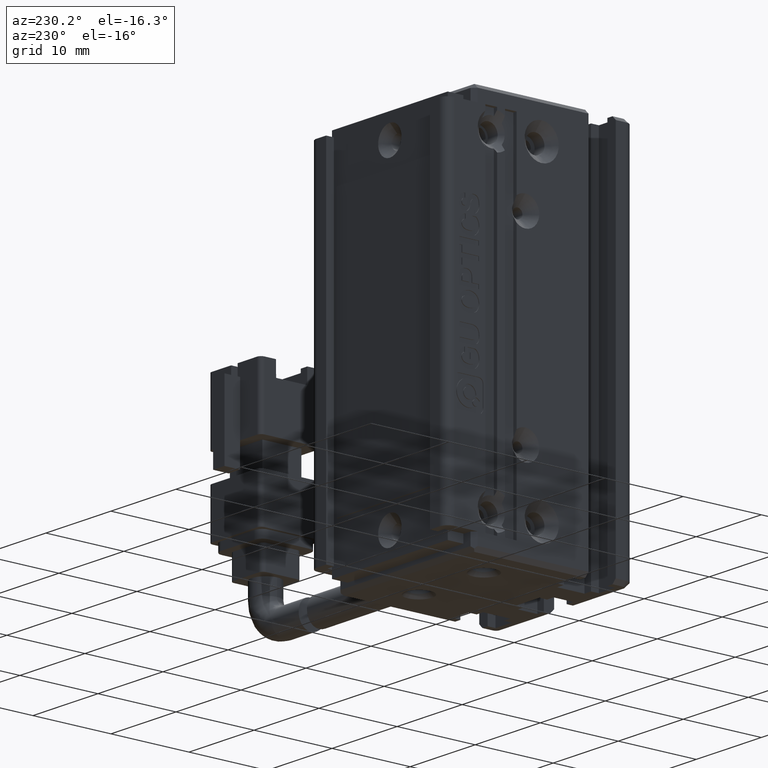
[diagram: clean part render]
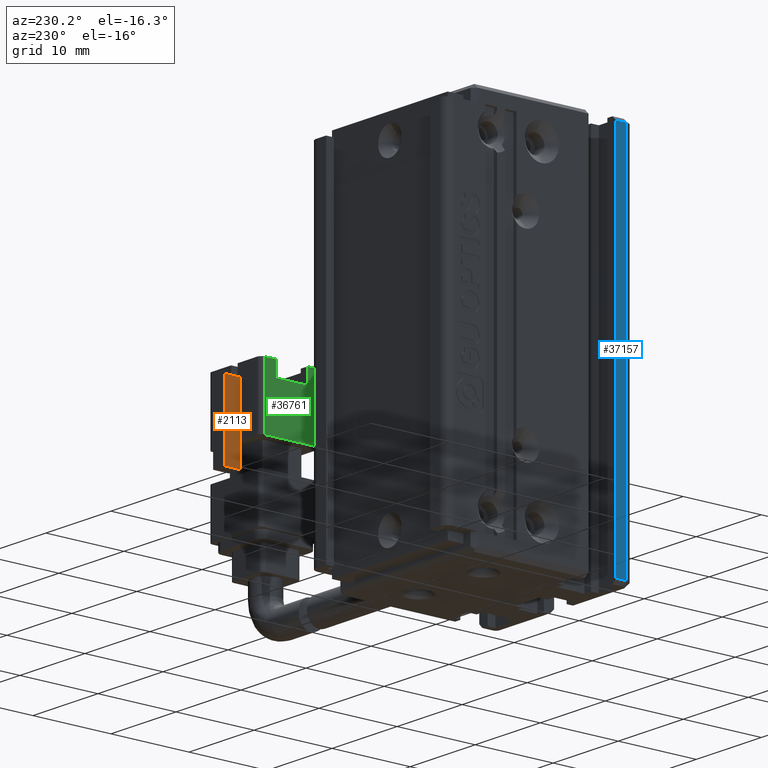
[diagram: same view with three faces highlighted in distinct colors, each labeled with its STEP entity id]
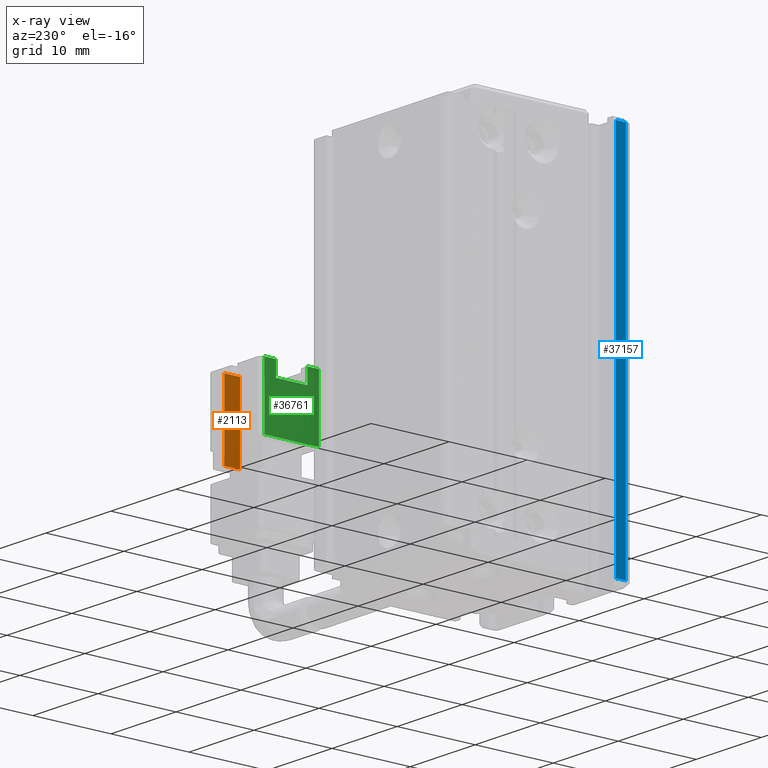
[diagram: x-ray of the same camera — body ghosted, the three highlighted faces saturated]
A machine part, auxiliary view with three faces highlighted in distinct colors.
The next image is the same camera in x-ray (body ghosted, the three faces saturated) — at least one of them is partly hidden behind the body in this view.
Their STEP definitions:

[orange] entity #2113 — the highlighted planar face has unit normal (-1, -0, -0).
#388 = EDGE_CURVE ( 'NONE', #18040, #18680, #3907, .T. ) ;
#471 = VERTEX_POINT ( 'NONE', #21193 ) ;
#2113 = ADVANCED_FACE ( 'NONE', ( #15467 ), #27715, .T. ) ;
#2116 = CARTESIAN_POINT ( 'NONE',  ( 73.55037974683534700, 25.49073232304858600, -119.9500000000000000 ) ) ;
#2722 = VECTOR ( 'NONE', #30249, 1000.000000000000000 ) ;
#2993 = DIRECTION ( 'NONE',  ( -1.041348031262155300E-030, 5.551115123125780200E-017, 1.000000000000000000 ) ) ;
#3907 = LINE ( 'NONE', #32717, #12393 ) ;
#4446 = EDGE_CURVE ( 'NONE', #24692, #34604, #23808, .T. ) ;
#5408 = ORIENTED_EDGE ( 'NONE', *, *, #4446, .T. ) ;
#5999 = ORIENTED_EDGE ( 'NONE', *, *, #8222, .T. ) ;
#6683 = DIRECTION ( 'NONE',  ( 1.041348031262155300E-030, -5.551115123125780200E-017, -1.000000000000000000 ) ) ;
#7549 = VECTOR ( 'NONE', #10087, 1000.000000000000000 ) ;
#8222 = EDGE_CURVE ( 'NONE', #34604, #471, #21112, .T. ) ;
#8970 = VECTOR ( 'NONE', #12421, 1000.000000000000000 ) ;
#9204 = CARTESIAN_POINT ( 'NONE',  ( 73.55037974683534700, 25.49073232304858600, -110.4500000000000000 ) ) ;
#9380 = LINE ( 'NONE', #30307, #8970 ) ;
#10087 = DIRECTION ( 'NONE',  ( 3.304235192336770000E-015, -1.000000000000000000, 5.551115123125780200E-017 ) ) ;
#12393 = VECTOR ( 'NONE', #2993, 1000.000000000000000 ) ;
#12421 = DIRECTION ( 'NONE',  ( -1.041348031262155300E-030, 5.551115123125780200E-017, 1.000000000000000000 ) ) ;
#14452 = ORIENTED_EDGE ( 'NONE', *, *, #24830, .T. ) ;
#14531 = CARTESIAN_POINT ( 'NONE',  ( 73.55037974683534700, 25.49073232304858600, -116.9500000000000000 ) ) ;
#15453 = EDGE_CURVE ( 'NONE', #471, #18040, #26330, .T. ) ;
#15467 = FACE_OUTER_BOUND ( 'NONE', #26767, .T. ) ;
#17775 = CARTESIAN_POINT ( 'NONE',  ( 73.55037974683534700, 25.49073232304858600, -110.4500000000000000 ) ) ;
#18040 = VERTEX_POINT ( 'NONE', #2116 ) ;
#18680 = VERTEX_POINT ( 'NONE', #14531 ) ;
#18747 = ORIENTED_EDGE ( 'NONE', *, *, #388, .T. ) ;
#19733 = VECTOR ( 'NONE', #6683, 1000.000000000000000 ) ;
#21112 = LINE ( 'NONE', #35644, #19733 ) ;
#21193 = CARTESIAN_POINT ( 'NONE',  ( 73.55037974683534700, 27.49073232304858600, -119.9500000000000000 ) ) ;
#21712 = DIRECTION ( 'NONE',  ( -1.041348031262155300E-030, 5.551115123125780200E-017, 1.000000000000000000 ) ) ;
#22914 = AXIS2_PLACEMENT_3D ( 'NONE', #36592, #30494, #21712 ) ;
#23808 = LINE ( 'NONE', #9204, #2722 ) ;
#24692 = VERTEX_POINT ( 'NONE', #17775 ) ;
#24830 = EDGE_CURVE ( 'NONE', #18680, #24692, #9380, .T. ) ;
#26330 = LINE ( 'NONE', #31381, #7549 ) ;
#26767 = EDGE_LOOP ( 'NONE', ( #5999, #32709, #18747, #14452, #5408 ) ) ;
#27715 = PLANE ( 'NONE',  #22914 ) ;
#30249 = DIRECTION ( 'NONE',  ( -3.304235192336770000E-015, 1.000000000000000000, -5.551115123125780200E-017 ) ) ;
#30307 = CARTESIAN_POINT ( 'NONE',  ( 73.55037974683534700, 25.49073232304858600, -108.9500000000000000 ) ) ;
#30494 = DIRECTION ( 'NONE',  ( -1.000000000000000000, -3.304235192336770000E-015, -8.579261317967046800E-031 ) ) ;
#30693 = CARTESIAN_POINT ( 'NONE',  ( 73.55037974683534700, 27.49073232304858600, -110.4500000000000000 ) ) ;
#31381 = CARTESIAN_POINT ( 'NONE',  ( 73.55037974683534700, 25.49073232304858600, -119.9500000000000000 ) ) ;
#32709 = ORIENTED_EDGE ( 'NONE', *, *, #15453, .T. ) ;
#32717 = CARTESIAN_POINT ( 'NONE',  ( 73.55037974683534700, 25.49073232304858600, -119.9500000000000000 ) ) ;
#34604 = VERTEX_POINT ( 'NONE', #30693 ) ;
#35644 = CARTESIAN_POINT ( 'NONE',  ( 73.55037974683534700, 27.49073232304858600, -110.4500000000000000 ) ) ;
#36592 = CARTESIAN_POINT ( 'NONE',  ( 73.55037974683534700, 25.49073232304858600, -110.4500000000000000 ) ) ;

[blue] entity #37157 — the highlighted planar face has unit normal (-1, -0, 0).
#437 = VERTEX_POINT ( 'NONE', #2490 ) ;
#2490 = CARTESIAN_POINT ( 'NONE',  ( 30.42537974683542100, 13.29073232304837200, -91.50000000000000000 ) ) ;
#4539 = DIRECTION ( 'NONE',  ( -0.0000000000000000000, -0.0000000000000000000, -1.000000000000000000 ) ) ;
#5176 = CARTESIAN_POINT ( 'NONE',  ( 30.42537974683542500, 11.99073232304837000, -91.50000000000000000 ) ) ;
#5178 = VERTEX_POINT ( 'NONE', #5176 ) ;
#8793 = CARTESIAN_POINT ( 'NONE',  ( 30.42537974683543200, 7.083797468354424300, -138.5000000000000000 ) ) ;
#9013 = LINE ( 'NONE', #30889, #13234 ) ;
#9956 = DIRECTION ( 'NONE',  ( 1.334402673828310500E-015, -1.000000000000000000, 0.0000000000000000000 ) ) ;
#10400 = EDGE_LOOP ( 'NONE', ( #32137, #36836, #22228, #31667 ) ) ;
#10907 = FACE_OUTER_BOUND ( 'NONE', #10400, .T. ) ;
#13234 = VECTOR ( 'NONE', #37266, 1000.000000000000000 ) ;
#15203 = DIRECTION ( 'NONE',  ( 1.334402673828310500E-015, -1.000000000000000000, 0.0000000000000000000 ) ) ;
#15297 = CARTESIAN_POINT ( 'NONE',  ( 30.42537974683543200, 7.083797468354424300, -91.00000000000000000 ) ) ;
#17604 = AXIS2_PLACEMENT_3D ( 'NONE', #15297, #21289, #9956 ) ;
#18179 = VERTEX_POINT ( 'NONE', #26592 ) ;
#18478 = EDGE_CURVE ( 'NONE', #437, #37756, #9013, .T. ) ;
#20162 = LINE ( 'NONE', #38256, #24853 ) ;
#21289 = DIRECTION ( 'NONE',  ( -1.000000000000000000, -1.334402673828310500E-015, 0.0000000000000000000 ) ) ;
#22228 = ORIENTED_EDGE ( 'NONE', *, *, #32615, .F. ) ;
#22245 = CARTESIAN_POINT ( 'NONE',  ( 30.42537974683542500, 11.99073232304837000, -91.00000000000000000 ) ) ;
#24853 = VECTOR ( 'NONE', #29641, 1000.000000000000000 ) ;
#26592 = CARTESIAN_POINT ( 'NONE',  ( 30.42537974684202200, 11.99073232304837000, -138.5000000000031800 ) ) ;
#27816 = PLANE ( 'NONE',  #17604 ) ;
#29641 = DIRECTION ( 'NONE',  ( -1.334402673828310500E-015, 1.000000000000000000, -0.0000000000000000000 ) ) ;
#30779 = EDGE_CURVE ( 'NONE', #5178, #437, #20162, .T. ) ;
#30889 = CARTESIAN_POINT ( 'NONE',  ( 30.42537974683542100, 13.29073232304837200, -91.00000000000000000 ) ) ;
#31002 = CARTESIAN_POINT ( 'NONE',  ( 30.42537974683542100, 13.29073232304837200, -138.5000000000000000 ) ) ;
#31667 = ORIENTED_EDGE ( 'NONE', *, *, #30779, .T. ) ;
#32056 = VECTOR ( 'NONE', #4539, 1000.000000000000000 ) ;
#32137 = ORIENTED_EDGE ( 'NONE', *, *, #18478, .T. ) ;
#32615 = EDGE_CURVE ( 'NONE', #5178, #18179, #32981, .T. ) ;
#32981 = LINE ( 'NONE', #22245, #32056 ) ;
#33932 = EDGE_CURVE ( 'NONE', #37756, #18179, #37397, .T. ) ;
#36836 = ORIENTED_EDGE ( 'NONE', *, *, #33932, .T. ) ;
#37157 = ADVANCED_FACE ( 'NONE', ( #10907 ), #27816, .T. ) ;
#37266 = DIRECTION ( 'NONE',  ( 0.0000000000000000000, -0.0000000000000000000, -1.000000000000000000 ) ) ;
#37397 = LINE ( 'NONE', #8793, #38348 ) ;
#37756 = VERTEX_POINT ( 'NONE', #31002 ) ;
#38256 = CARTESIAN_POINT ( 'NONE',  ( 30.42537974683543200, 7.083797468354424300, -91.50000000000000000 ) ) ;
#38348 = VECTOR ( 'NONE', #15203, 1000.000000000000000 ) ;

[green] entity #36761 — the highlighted planar face has unit normal (1, 0, 0).
#155 = ORIENTED_EDGE ( 'NONE', *, *, #19012, .F. ) ;
#350 = DIRECTION ( 'NONE',  ( 3.552052831762028200E-015, -1.000000000000000000, 5.551115123125780200E-017 ) ) ;
#1373 = DIRECTION ( 'NONE',  ( -3.304235192336770000E-015, 1.000000000000000000, -5.551115123125780200E-017 ) ) ;
#1525 = AXIS2_PLACEMENT_3D ( 'NONE', #4953, #4561, #7819 ) ;
#2432 = EDGE_CURVE ( 'NONE', #12574, #7785, #33639, .T. ) ;
#2562 = ORIENTED_EDGE ( 'NONE', *, *, #23219, .F. ) ;
#3017 = EDGE_CURVE ( 'NONE', #4309, #6104, #6709, .T. ) ;
#3417 = FACE_OUTER_BOUND ( 'NONE', #30735, .T. ) ;
#3854 = CARTESIAN_POINT ( 'NONE',  ( 70.42537974683536100, 17.99073232304857200, -108.9500000000000000 ) ) ;
#4044 = ORIENTED_EDGE ( 'NONE', *, *, #32954, .F. ) ;
#4252 = DIRECTION ( 'NONE',  ( -1.041348031262155300E-030, 5.551115123125780200E-017, 1.000000000000000000 ) ) ;
#4309 = VERTEX_POINT ( 'NONE', #32617 ) ;
#4561 = DIRECTION ( 'NONE',  ( 1.000000000000000000, 3.552052831762028200E-015, 8.441694893367958300E-031 ) ) ;
#4953 = CARTESIAN_POINT ( 'NONE',  ( 70.42537974683534700, 24.99073232304857200, -108.9500000000000000 ) ) ;
#5203 = VECTOR ( 'NONE', #1373, 1000.000000000000000 ) ;
#5780 = LINE ( 'NONE', #21176, #31573 ) ;
#6104 = VERTEX_POINT ( 'NONE', #18586 ) ;
#6709 = LINE ( 'NONE', #28786, #26876 ) ;
#6982 = CARTESIAN_POINT ( 'NONE',  ( 70.42537974683534700, 24.99073232304857200, -108.9500000000000000 ) ) ;
#7116 = LINE ( 'NONE', #6982, #10977 ) ;
#7785 = VERTEX_POINT ( 'NONE', #19076 ) ;
#7819 = DIRECTION ( 'NONE',  ( 3.552052831762028200E-015, -1.000000000000000000, 5.551115123125780200E-017 ) ) ;
#7900 = VERTEX_POINT ( 'NONE', #22217 ) ;
#10368 = LINE ( 'NONE', #3854, #30923 ) ;
#10661 = DIRECTION ( 'NONE',  ( 3.552052831762028200E-015, -1.000000000000000000, 5.551115123125780200E-017 ) ) ;
#10977 = VECTOR ( 'NONE', #4252, 1000.000000000000000 ) ;
#12574 = VERTEX_POINT ( 'NONE', #25055 ) ;
#12795 = VERTEX_POINT ( 'NONE', #23477 ) ;
#13626 = CARTESIAN_POINT ( 'NONE',  ( 70.42537974683534700, 24.99073232304857200, -116.9500000000000000 ) ) ;
#13911 = VECTOR ( 'NONE', #10661, 1000.000000000000000 ) ;
#14124 = LINE ( 'NONE', #19343, #5203 ) ;
#15990 = PLANE ( 'NONE',  #1525 ) ;
#16284 = CARTESIAN_POINT ( 'NONE',  ( 70.42537974683534700, 24.99073232304857200, -116.9500000000000000 ) ) ;
#16989 = LINE ( 'NONE', #16284, #21666 ) ;
#17333 = ORIENTED_EDGE ( 'NONE', *, *, #29914, .F. ) ;
#17354 = ORIENTED_EDGE ( 'NONE', *, *, #24199, .F. ) ;
#17751 = VECTOR ( 'NONE', #28180, 1000.000000000000000 ) ;
#18241 = ORIENTED_EDGE ( 'NONE', *, *, #30632, .T. ) ;
#18542 = DIRECTION ( 'NONE',  ( 1.041348031262155300E-030, -5.551115123125780200E-017, -1.000000000000000000 ) ) ;
#18586 = CARTESIAN_POINT ( 'NONE',  ( 70.42537974683536100, 19.49073232304857600, -108.9500000000000000 ) ) ;
#18679 = VERTEX_POINT ( 'NONE', #13626 ) ;
#19012 = EDGE_CURVE ( 'NONE', #7900, #23951, #10368, .T. ) ;
#19076 = CARTESIAN_POINT ( 'NONE',  ( 70.42537974683534700, 23.49073232304857600, -110.8686299809477400 ) ) ;
#19312 = DIRECTION ( 'NONE',  ( -3.304235192336770000E-015, 1.000000000000000000, -5.551115123125780200E-017 ) ) ;
#19316 = CARTESIAN_POINT ( 'NONE',  ( 70.42537974683534700, 23.49073232304857600, -108.9500000000000000 ) ) ;
#19343 = CARTESIAN_POINT ( 'NONE',  ( 70.42537974683534700, 24.99073232304857600, -108.9500000000000000 ) ) ;
#21176 = CARTESIAN_POINT ( 'NONE',  ( 70.42537974683534700, 24.99073232304857200, -110.8686299809477400 ) ) ;
#21666 = VECTOR ( 'NONE', #19312, 1000.000000000000000 ) ;
#22217 = CARTESIAN_POINT ( 'NONE',  ( 70.42537974683536100, 17.99073232304857200, -108.9500000000000000 ) ) ;
#23219 = EDGE_CURVE ( 'NONE', #12795, #12574, #35872, .T. ) ;
#23477 = CARTESIAN_POINT ( 'NONE',  ( 70.42537974683534700, 24.99073232304857200, -108.9500000000000000 ) ) ;
#23951 = VERTEX_POINT ( 'NONE', #29004 ) ;
#24199 = EDGE_CURVE ( 'NONE', #23951, #18679, #16989, .T. ) ;
#25055 = CARTESIAN_POINT ( 'NONE',  ( 70.42537974683534700, 23.49073232304857600, -108.9500000000000000 ) ) ;
#26876 = VECTOR ( 'NONE', #31566, 1000.000000000000000 ) ;
#28180 = DIRECTION ( 'NONE',  ( 1.041348031262155300E-030, -5.551115123125780200E-017, -1.000000000000000000 ) ) ;
#28558 = ORIENTED_EDGE ( 'NONE', *, *, #3017, .F. ) ;
#28786 = CARTESIAN_POINT ( 'NONE',  ( 70.42537974683536100, 19.49073232304857600, -108.9500000000000000 ) ) ;
#29004 = CARTESIAN_POINT ( 'NONE',  ( 70.42537974683536100, 17.99073232304857200, -116.9500000000000000 ) ) ;
#29914 = EDGE_CURVE ( 'NONE', #7785, #4309, #5780, .T. ) ;
#30632 = EDGE_CURVE ( 'NONE', #7900, #6104, #14124, .T. ) ;
#30735 = EDGE_LOOP ( 'NONE', ( #31735, #2562, #4044, #17354, #155, #18241, #28558, #17333 ) ) ;
#30923 = VECTOR ( 'NONE', #18542, 1000.000000000000000 ) ;
#31303 = CARTESIAN_POINT ( 'NONE',  ( 70.42537974683534700, 24.99073232304857200, -108.9500000000000000 ) ) ;
#31566 = DIRECTION ( 'NONE',  ( -1.041348031262155300E-030, 5.551115123125780200E-017, 1.000000000000000000 ) ) ;
#31573 = VECTOR ( 'NONE', #350, 1000.000000000000000 ) ;
#31735 = ORIENTED_EDGE ( 'NONE', *, *, #2432, .F. ) ;
#32617 = CARTESIAN_POINT ( 'NONE',  ( 70.42537974683536100, 19.49073232304857600, -110.8686299809477400 ) ) ;
#32954 = EDGE_CURVE ( 'NONE', #18679, #12795, #7116, .T. ) ;
#33639 = LINE ( 'NONE', #19316, #17751 ) ;
#35872 = LINE ( 'NONE', #31303, #13911 ) ;
#36761 = ADVANCED_FACE ( 'NONE', ( #3417 ), #15990, .F. ) ;